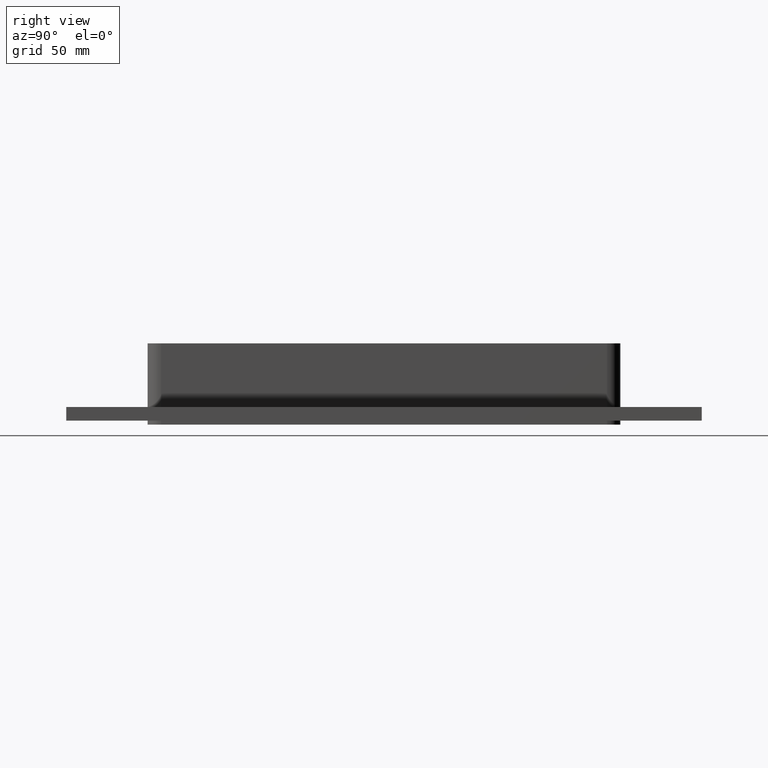
[diagram: clean part render]
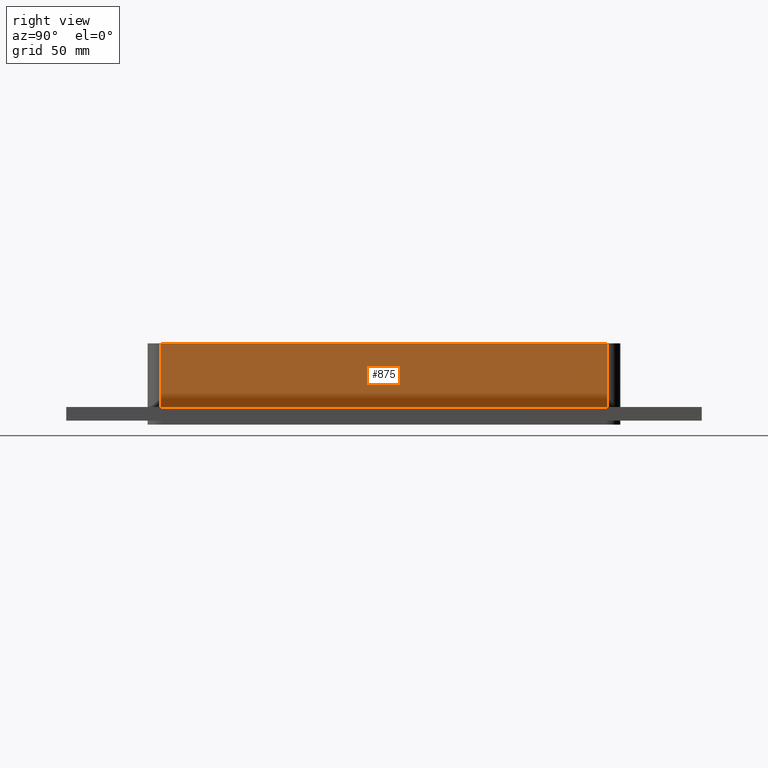
[diagram: same view with one face highlighted and labeled with its STEP entity id]
A machine part, right view. The second image highlights one B-rep face of the part: STEP entity #875.
In plain terms, the highlighted planar face has unit normal (1, 0, 0).
Its self-contained STEP definition (entity closure, byte-faithful):
#575=CARTESIAN_POINT('',(70.249999999999915,164.50000000000011,-17.0));
#576=VERTEX_POINT('',#575);
#586=CARTESIAN_POINT('',(70.250000000000057,-164.5,-17.0));
#587=VERTEX_POINT('',#586);
#588=CARTESIAN_POINT('',(70.250000000000057,-164.5,-17.0));
#589=DIRECTION('',(0.0,1.0,0.0));
#590=VECTOR('',#589,329.00000000000011);
#591=LINE('',#588,#590);
#592=EDGE_CURVE('',#587,#576,#591,.T.);
#802=CARTESIAN_POINT('',(70.250000000000057,-164.5,30.0));
#803=VERTEX_POINT('',#802);
#804=CARTESIAN_POINT('',(70.250000000000057,-164.5,-17.0));
#805=DIRECTION('',(0.0,0.0,1.0));
#806=VECTOR('',#805,47.0);
#807=LINE('',#804,#806);
#808=EDGE_CURVE('',#587,#803,#807,.T.);
#852=CARTESIAN_POINT('',(70.250000000000057,-174.5,0.0));
#853=DIRECTION('',(1.0,0.0,0.0));
#854=DIRECTION('',(0.0,1.0,0.0));
#855=AXIS2_PLACEMENT_3D('',#852,#853,#854);
#856=PLANE('',#855);
#857=ORIENTED_EDGE('',*,*,#592,.T.);
#858=CARTESIAN_POINT('',(70.249999999999986,164.49999999999991,30.0));
#859=VERTEX_POINT('',#858);
#860=CARTESIAN_POINT('',(70.249999999999986,164.49999999999994,30.0));
#861=DIRECTION('',(0.0,0.0,-1.0));
#862=VECTOR('',#861,47.0);
#863=LINE('',#860,#862);
#864=EDGE_CURVE('',#859,#576,#863,.T.);
#865=ORIENTED_EDGE('',*,*,#864,.F.);
#866=CARTESIAN_POINT('',(70.250000000000057,-164.5,30.0));
#867=DIRECTION('',(0.0,1.0,0.0));
#868=VECTOR('',#867,328.99999999999989);
#869=LINE('',#866,#868);
#870=EDGE_CURVE('',#803,#859,#869,.T.);
#871=ORIENTED_EDGE('',*,*,#870,.F.);
#872=ORIENTED_EDGE('',*,*,#808,.F.);
#873=EDGE_LOOP('',(#857,#865,#871,#872));
#874=FACE_OUTER_BOUND('',#873,.T.);
#875=ADVANCED_FACE('',(#874),#856,.T.);